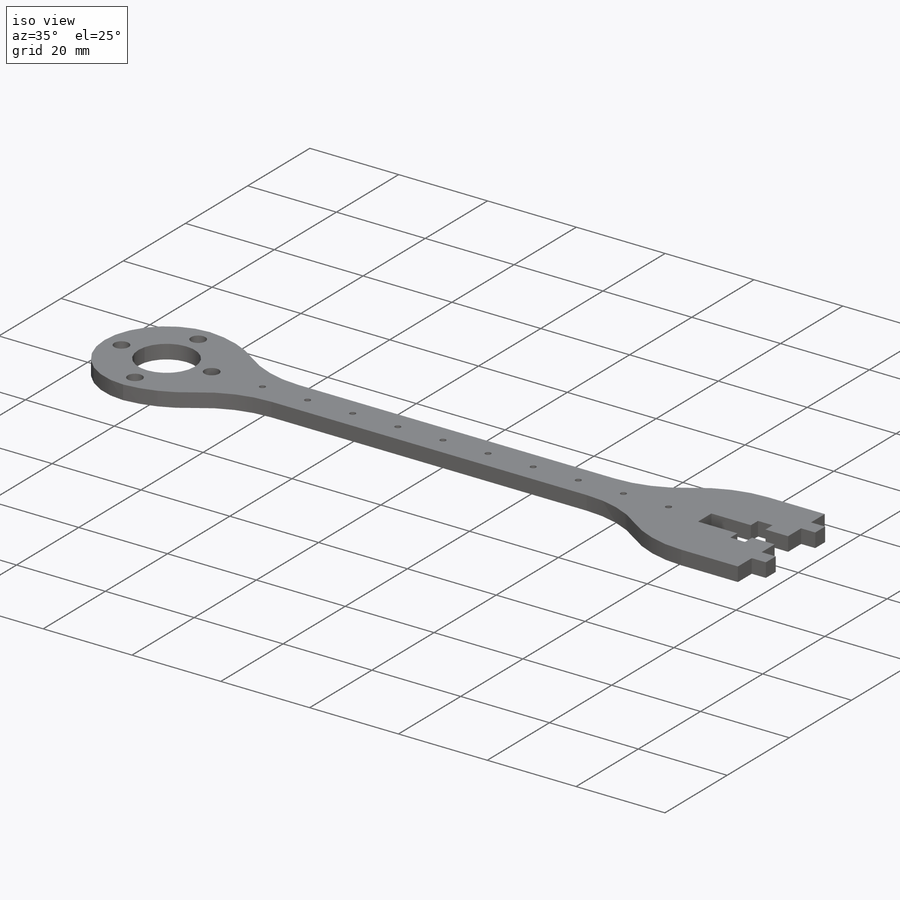
[diagram: iso view]
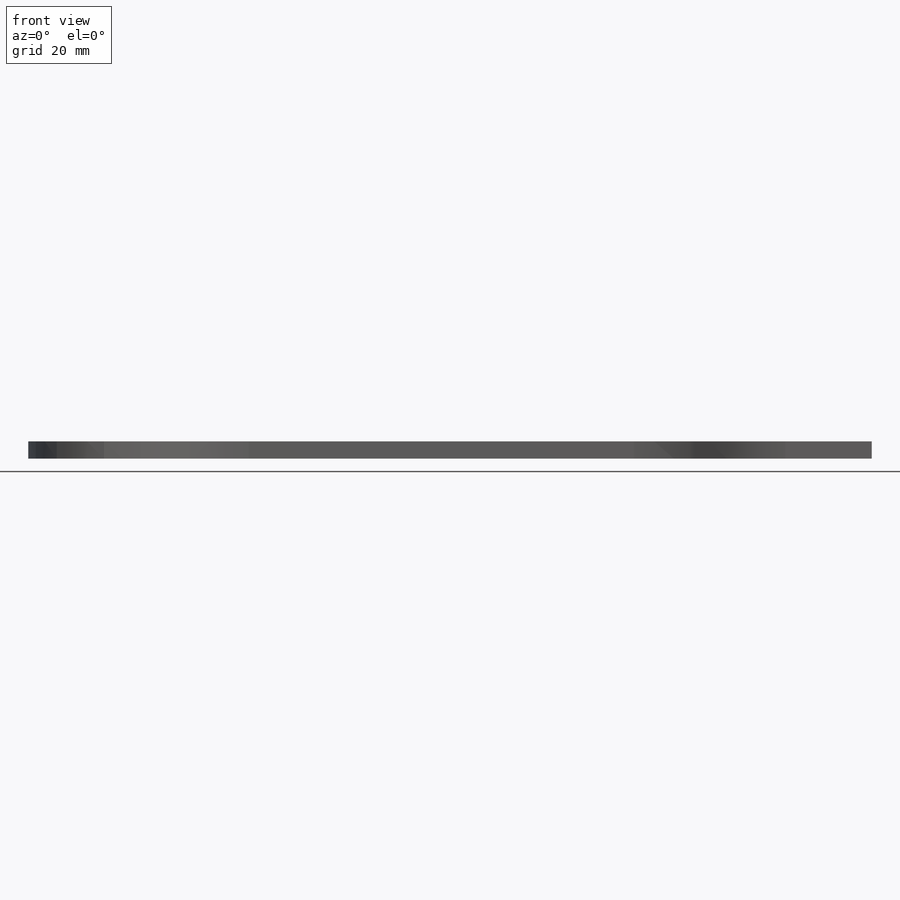
[diagram: front view]
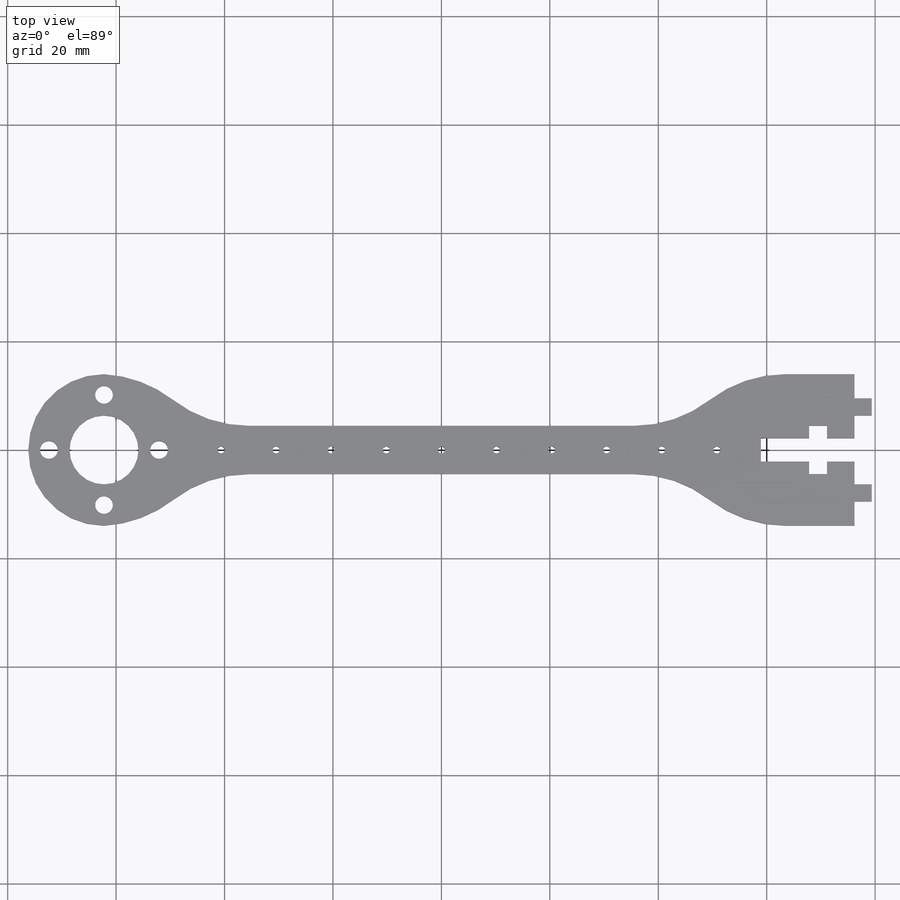
[diagram: top view]
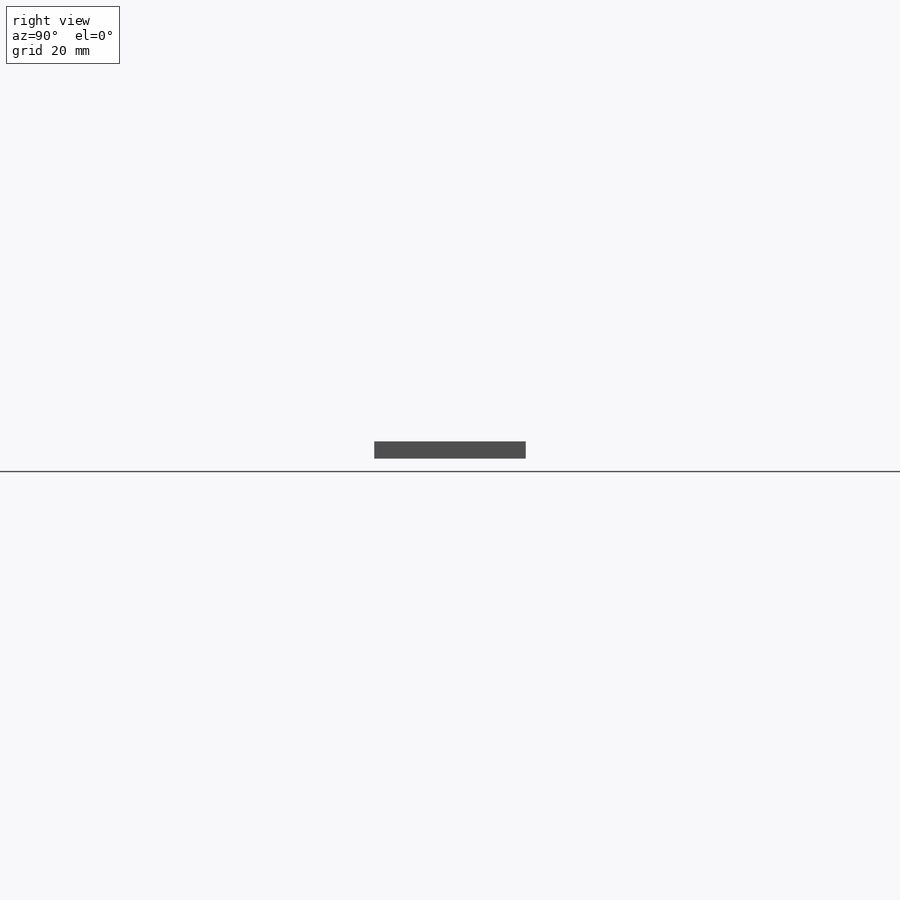
[diagram: right view]
SOLIDWORKS PART (.sldprt)
format: sldprt  version: not decoded by parser v0  size: 346,112 bytes
history: native  units: mm
features: sketch x8, cut_extrude x4, fillet x3, extrude x2, material x1, hole x1, pattern_circular x1, mirror x1 (+11 scaffold rows collapsed)
feature tree (32):
  scaffold x11  (default folders/planes/origin — collapsed)
  material  "Material <not specified>"
  sketch  "Sketch2"  dims[D1=152.4mm D2=27.94mm]
  extrude  "Boss-Extrude1"  Depth=3.175mm
  sketch  "Sketch3"  dims[D1=12.7mm D2=13.97mm]
  cut_extrude  "Cut-Extrude1"  Depth=3.175mm
  hole  "#4 Clearance Hole1"  Diameter=3.2639mm Depth=10.16mm
  sketch  "Sketch5"  dims[D1=10.16mm]
  sketch  "Sketch4"  dims[hole-wizard template sketch: 50 standard entries collapsed; hole parameters above]
  pattern_circular  "CirPattern1"  Count=4 Angle=90deg
  sketch  "Sketch6"  dims[D1=17.272mm D2=4.318mm D3=3.302mm D4=8.89mm D5=5.08mm]
  cut_extrude  "Cut-Extrude2"  Depth=6.35mm
  sketch  "Sketch8"  dims[D1=3.175mm D2=3.175mm D3=6.35mm D4=6.35mm]
  extrude  "Boss-Extrude3"  Depth=3.175mm
  fillet  "Fillet4"  Radius=13.97mm
  sketch  "Sketch12"  dims[D1=1.27mm D2=6.0 D3=5.0]
  cut_extrude  "Cut-Extrude3"  Depth=5.08mm
  sketch  "Sketch13"  dims[c1.D1=88.9mm c1.D2=19.05mm c1.D3=6.35mm c2.D3=45.0deg c2.D4=12.7mm c3.D4=45.0deg c3.D5=~8.980256mm]
  cut_extrude  "Cut-Extrude5"  Depth=5.08mm
  mirror  "Mirror1"
  fillet  "Fillet7"  Radius=22.86mm
  fillet  "Fillet8"  Radius=22.86mm
decode coverage: 19 of 20 modeling features carry decoded parameters
note: ~ marks probable driven/reference dimensions
note: suppression state not decoded; provenance and decode notes live in map.json
